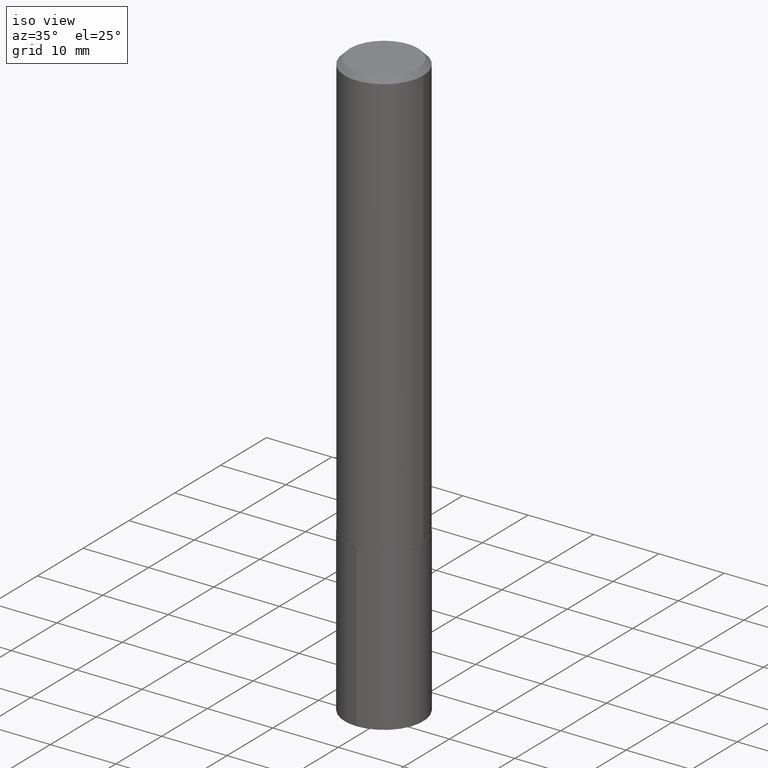
[diagram: clean part render]
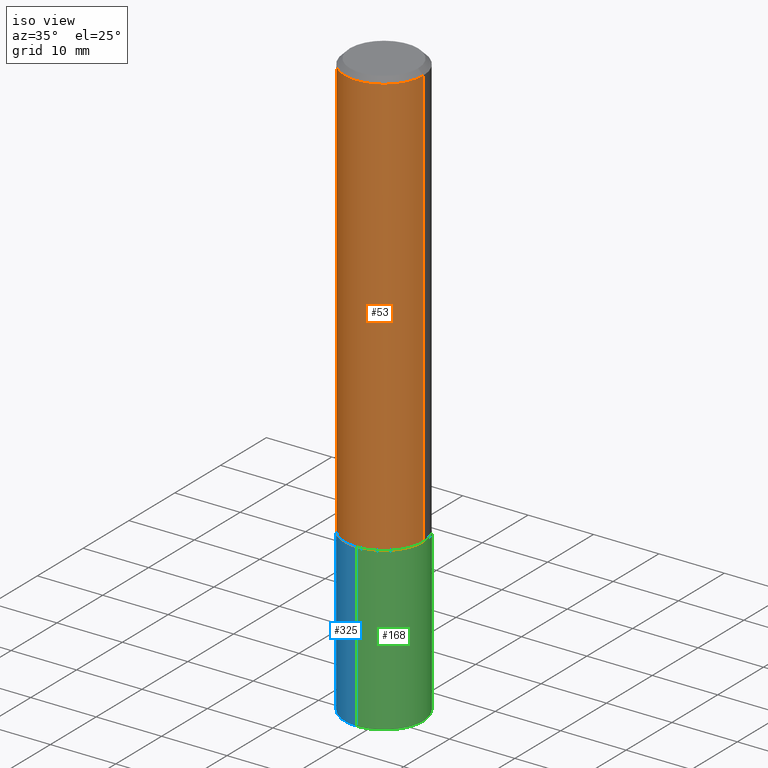
[diagram: same view with three faces highlighted in distinct colors, each labeled with its STEP entity id]
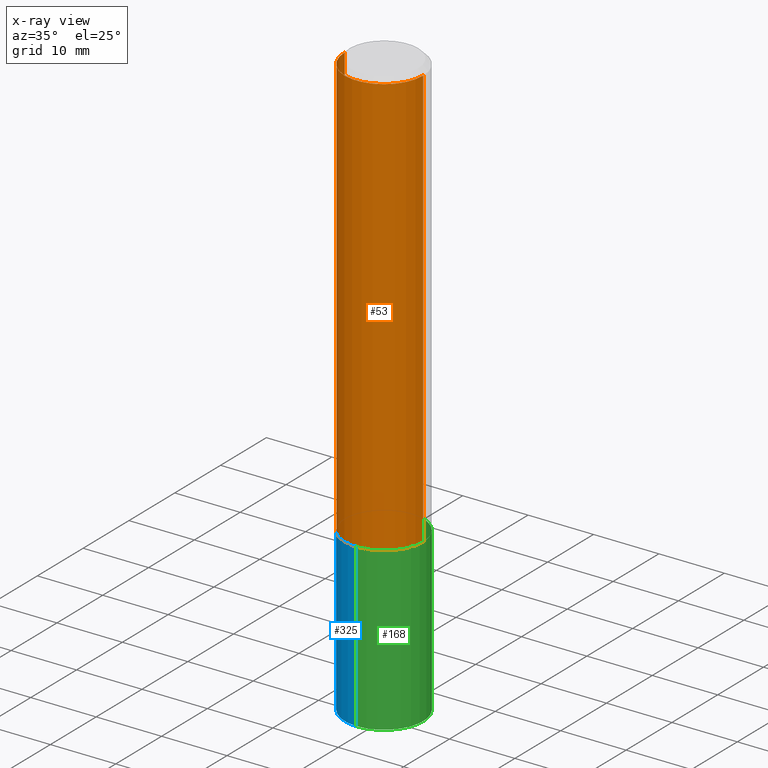
[diagram: x-ray of the same camera — body ghosted, the three highlighted faces saturated]
A machine part, iso view with three faces highlighted in distinct colors.
The next image is the same camera in x-ray (body ghosted, the three faces saturated) — at least one of them is partly hidden behind the body in this view.
Their STEP definitions:

[orange] entity #53 — the highlighted cylindrical surface (partial cylindrical patch) has radius 5.9995 mm, axis along (-0, 0, 1).
#2 = DIRECTION ( 'NONE',  ( 1.000000000000000000, -6.982962677686266711E-15, 4.876176775795936353E-29 ) ) ;
#6 = CARTESIAN_POINT ( 'NONE',  ( 0.2362000000000002709, -1.061131008501208223E-14, -2.566799999999999304 ) ) ;
#8 = EDGE_CURVE ( 'NONE', #286, #200, #307, .T. ) ;
#16 = CIRCLE ( 'NONE', #24, 0.2361999999999999933 ) ;
#20 = VERTEX_POINT ( 'NONE', #248 ) ;
#24 = AXIS2_PLACEMENT_3D ( 'NONE', #28, #333, #208 ) ;
#28 = CARTESIAN_POINT ( 'NONE',  ( 7.642090019328599159E-31, -1.091087918388489774E-16, -0.03125000000000019429 ) ) ;
#42 = EDGE_CURVE ( 'NONE', #286, #20, #326, .T. ) ;
#52 = CYLINDRICAL_SURFACE ( 'NONE', #181, 0.2362000000000001321 ) ;
#53 = ADVANCED_FACE ( 'NONE', ( #273 ), #52, .T. ) ;
#60 = ORIENTED_EDGE ( 'NONE', *, *, #120, .F. ) ;
#67 = CARTESIAN_POINT ( 'NONE',  ( -0.2362000000000001321, 1.678301941865357577E-15, -1.161852468318209457E-29 ) ) ;
#71 = ORIENTED_EDGE ( 'NONE', *, *, #322, .T. ) ;
#88 = DIRECTION ( 'NONE',  ( -2.445468806185136877E-29, 3.491481338843145188E-15, 1.000000000000000000 ) ) ;
#120 = EDGE_CURVE ( 'NONE', #20, #232, #16, .T. ) ;
#130 = CARTESIAN_POINT ( 'NONE',  ( -0.2362000000000002709, -7.283632358677226158E-15, -2.566799999999999304 ) ) ;
#131 = EDGE_LOOP ( 'NONE', ( #170, #137, #71, #60 ) ) ;
#137 = ORIENTED_EDGE ( 'NONE', *, *, #8, .T. ) ;
#144 = DIRECTION ( 'NONE',  ( 1.000000000000000000, -6.982962677686265133E-15, 0.000000000000000000 ) ) ;
#146 = VECTOR ( 'NONE', #299, 39.37007874015748143 ) ;
#155 = CARTESIAN_POINT ( 'NONE',  ( 0.000000000000000000, 0.000000000000000000, 0.000000000000000000 ) ) ;
#170 = ORIENTED_EDGE ( 'NONE', *, *, #42, .F. ) ;
#172 = CARTESIAN_POINT ( 'NONE',  ( 6.277029331716007931E-29, -8.961934300542585708E-15, -2.566799999999999304 ) ) ;
#181 = AXIS2_PLACEMENT_3D ( 'NONE', #155, #276, #2 ) ;
#200 = VERTEX_POINT ( 'NONE', #6 ) ;
#206 = DIRECTION ( 'NONE',  ( -2.445468806185136597E-29, 3.491481338843145583E-15, 1.000000000000000000 ) ) ;
#208 = DIRECTION ( 'NONE',  ( 1.000000000000000000, -6.982962677686266711E-15, 0.000000000000000000 ) ) ;
#226 = LINE ( 'NONE', #359, #243 ) ;
#232 = VERTEX_POINT ( 'NONE', #342 ) ;
#243 = VECTOR ( 'NONE', #88, 39.37007874015748143 ) ;
#248 = CARTESIAN_POINT ( 'NONE',  ( -0.2361999999999999933, -2.857219604325358644E-15, -0.03125000000000019429 ) ) ;
#273 = FACE_OUTER_BOUND ( 'NONE', #131, .T. ) ;
#276 = DIRECTION ( 'NONE',  ( -2.445468806185136597E-29, 3.491481338843145583E-15, 1.000000000000000000 ) ) ;
#286 = VERTEX_POINT ( 'NONE', #130 ) ;
#299 = DIRECTION ( 'NONE',  ( -2.445468806185136877E-29, 3.491481338843145188E-15, 1.000000000000000000 ) ) ;
#307 = CIRCLE ( 'NONE', #344, 0.2362000000000002709 ) ;
#322 = EDGE_CURVE ( 'NONE', #200, #232, #226, .T. ) ;
#326 = LINE ( 'NONE', #67, #146 ) ;
#333 = DIRECTION ( 'NONE',  ( -2.445468806185136597E-29, 3.491481338843145583E-15, 1.000000000000000000 ) ) ;
#342 = CARTESIAN_POINT ( 'NONE',  ( 0.2361999999999999933, -1.758484576308345231E-15, -0.03125000000000019429 ) ) ;
#344 = AXIS2_PLACEMENT_3D ( 'NONE', #172, #206, #144 ) ;
#359 = CARTESIAN_POINT ( 'NONE',  ( 0.2362000000000001321, -1.649375784469497117E-15, 1.151752954443000789E-29 ) ) ;

[blue] entity #325 — the highlighted cylindrical surface (partial cylindrical patch) has radius 5.9995 mm, axis along (-0, 0, 1).
#7 = CYLINDRICAL_SURFACE ( 'NONE', #44, 0.2361999999999999933 ) ;
#11 = CARTESIAN_POINT ( 'NONE',  ( 1.678301941865443563E-15, 0.2361999999999910838, -2.567300000000000804 ) ) ;
#32 = CIRCLE ( 'NONE', #238, 0.2361999999999999933 ) ;
#33 = VECTOR ( 'NONE', #55, 39.37007874015748143 ) ;
#34 = DIRECTION ( 'NONE',  ( -2.447102614353339399E-29, 3.489141632555692628E-15, 1.000000000000000000 ) ) ;
#35 = DIRECTION ( 'NONE',  ( -2.447102614353339399E-29, 3.489141632555693023E-15, 1.000000000000000000 ) ) ;
#38 = CARTESIAN_POINT ( 'NONE',  ( -1.649375784469409356E-15, -0.2362000000000123445, -3.543299999999999894 ) ) ;
#44 = AXIS2_PLACEMENT_3D ( 'NONE', #99, #219, #337 ) ;
#47 = DIRECTION ( 'NONE',  ( -2.447102614353339399E-29, 3.489141632555693023E-15, 1.000000000000000000 ) ) ;
#55 = DIRECTION ( 'NONE',  ( -2.447102614353339399E-29, 3.489141632555692628E-15, 1.000000000000000000 ) ) ;
#61 = CIRCLE ( 'NONE', #259, 0.2361999999999999933 ) ;
#79 = LINE ( 'NONE', #192, #33 ) ;
#81 = CARTESIAN_POINT ( 'NONE',  ( -1.649375784469433022E-15, -0.2362000000000089306, -2.567299999999998583 ) ) ;
#96 = VERTEX_POINT ( 'NONE', #124 ) ;
#99 = CARTESIAN_POINT ( 'NONE',  ( 6.278252066119100733E-29, -8.963680041212008000E-15, -2.567299999999999471 ) ) ;
#101 = DIRECTION ( 'NONE',  ( -6.982962677686265922E-15, -1.000000000000000000, 4.626330217890369336E-15 ) ) ;
#110 = ORIENTED_EDGE ( 'NONE', *, *, #300, .F. ) ;
#124 = CARTESIAN_POINT ( 'NONE',  ( 1.678301941865431139E-15, 0.2361999999999876421, -3.543300000000002115 ) ) ;
#139 = VECTOR ( 'NONE', #34, 39.37007874015748143 ) ;
#141 = VERTEX_POINT ( 'NONE', #214 ) ;
#185 = EDGE_CURVE ( 'NONE', #96, #349, #61, .T. ) ;
#192 = CARTESIAN_POINT ( 'NONE',  ( 1.678301941865419306E-15, 0.2361999999999910560, -2.567300000000000804 ) ) ;
#203 = FACE_OUTER_BOUND ( 'NONE', #317, .T. ) ;
#214 = CARTESIAN_POINT ( 'NONE',  ( -1.649375784469433022E-15, -0.2362000000000089306, -2.567299999999998583 ) ) ;
#216 = ORIENTED_EDGE ( 'NONE', *, *, #360, .F. ) ;
#219 = DIRECTION ( 'NONE',  ( -2.447102614353339399E-29, 3.489141632555693023E-15, 1.000000000000000000 ) ) ;
#220 = VERTEX_POINT ( 'NONE', #11 ) ;
#222 = CARTESIAN_POINT ( 'NONE',  ( 6.278252066119100733E-29, -8.963680041212008000E-15, -2.567299999999999471 ) ) ;
#230 = EDGE_CURVE ( 'NONE', #349, #141, #347, .T. ) ;
#238 = AXIS2_PLACEMENT_3D ( 'NONE', #222, #35, #282 ) ;
#259 = AXIS2_PLACEMENT_3D ( 'NONE', #331, #47, #101 ) ;
#282 = DIRECTION ( 'NONE',  ( -6.982962677686265922E-15, -1.000000000000000000, 4.626330217890369336E-15 ) ) ;
#300 = EDGE_CURVE ( 'NONE', #220, #141, #32, .T. ) ;
#317 = EDGE_LOOP ( 'NONE', ( #216, #319, #355, #110 ) ) ;
#319 = ORIENTED_EDGE ( 'NONE', *, *, #185, .T. ) ;
#325 = ADVANCED_FACE ( 'NONE', ( #203 ), #7, .T. ) ;
#331 = CARTESIAN_POINT ( 'NONE',  ( 8.666624217727962385E-29, -1.236908227458636611E-14, -3.543300000000000782 ) ) ;
#337 = DIRECTION ( 'NONE',  ( -6.982962677686265922E-15, -1.000000000000000000, 4.626330217890369336E-15 ) ) ;
#347 = LINE ( 'NONE', #81, #139 ) ;
#349 = VERTEX_POINT ( 'NONE', #38 ) ;
#355 = ORIENTED_EDGE ( 'NONE', *, *, #230, .T. ) ;
#360 = EDGE_CURVE ( 'NONE', #96, #220, #79, .T. ) ;

[green] entity #168 — the highlighted cylindrical surface (partial cylindrical patch) has radius 5.9995 mm, axis along (-0, 0, 1).
#5 = DIRECTION ( 'NONE',  ( -2.447102614353339399E-29, 3.489141632555693023E-15, 1.000000000000000000 ) ) ;
#11 = CARTESIAN_POINT ( 'NONE',  ( 1.678301941865443563E-15, 0.2361999999999910838, -2.567300000000000804 ) ) ;
#29 = FACE_OUTER_BOUND ( 'NONE', #262, .T. ) ;
#30 = DIRECTION ( 'NONE',  ( -6.982962677686265922E-15, -1.000000000000000000, 4.626330217890369336E-15 ) ) ;
#33 = VECTOR ( 'NONE', #55, 39.37007874015748143 ) ;
#34 = DIRECTION ( 'NONE',  ( -2.447102614353339399E-29, 3.489141632555692628E-15, 1.000000000000000000 ) ) ;
#38 = CARTESIAN_POINT ( 'NONE',  ( -1.649375784469409356E-15, -0.2362000000000123445, -3.543299999999999894 ) ) ;
#40 = ORIENTED_EDGE ( 'NONE', *, *, #230, .F. ) ;
#55 = DIRECTION ( 'NONE',  ( -2.447102614353339399E-29, 3.489141632555692628E-15, 1.000000000000000000 ) ) ;
#58 = EDGE_CURVE ( 'NONE', #349, #96, #152, .T. ) ;
#72 = ORIENTED_EDGE ( 'NONE', *, *, #58, .T. ) ;
#79 = LINE ( 'NONE', #192, #33 ) ;
#81 = CARTESIAN_POINT ( 'NONE',  ( -1.649375784469433022E-15, -0.2362000000000089306, -2.567299999999998583 ) ) ;
#96 = VERTEX_POINT ( 'NONE', #124 ) ;
#123 = CARTESIAN_POINT ( 'NONE',  ( 6.278252066119100733E-29, -8.963680041212008000E-15, -2.567299999999999471 ) ) ;
#124 = CARTESIAN_POINT ( 'NONE',  ( 1.678301941865431139E-15, 0.2361999999999876421, -3.543300000000002115 ) ) ;
#133 = EDGE_CURVE ( 'NONE', #141, #220, #159, .T. ) ;
#139 = VECTOR ( 'NONE', #34, 39.37007874015748143 ) ;
#141 = VERTEX_POINT ( 'NONE', #214 ) ;
#142 = AXIS2_PLACEMENT_3D ( 'NONE', #123, #5, #30 ) ;
#149 = CARTESIAN_POINT ( 'NONE',  ( 6.278252066119100733E-29, -8.963680041212008000E-15, -2.567299999999999471 ) ) ;
#152 = CIRCLE ( 'NONE', #323, 0.2361999999999999933 ) ;
#159 = CIRCLE ( 'NONE', #301, 0.2361999999999999933 ) ;
#168 = ADVANCED_FACE ( 'NONE', ( #29 ), #277, .T. ) ;
#184 = DIRECTION ( 'NONE',  ( -2.447102614353339399E-29, 3.489141632555693023E-15, 1.000000000000000000 ) ) ;
#192 = CARTESIAN_POINT ( 'NONE',  ( 1.678301941865419306E-15, 0.2361999999999910560, -2.567300000000000804 ) ) ;
#214 = CARTESIAN_POINT ( 'NONE',  ( -1.649375784469433022E-15, -0.2362000000000089306, -2.567299999999998583 ) ) ;
#220 = VERTEX_POINT ( 'NONE', #11 ) ;
#230 = EDGE_CURVE ( 'NONE', #349, #141, #347, .T. ) ;
#245 = DIRECTION ( 'NONE',  ( -2.447102614353339399E-29, 3.489141632555693023E-15, 1.000000000000000000 ) ) ;
#262 = EDGE_LOOP ( 'NONE', ( #72, #287, #351, #40 ) ) ;
#272 = DIRECTION ( 'NONE',  ( -6.982962677686265922E-15, -1.000000000000000000, 4.626330217890369336E-15 ) ) ;
#277 = CYLINDRICAL_SURFACE ( 'NONE', #142, 0.2361999999999999933 ) ;
#287 = ORIENTED_EDGE ( 'NONE', *, *, #360, .T. ) ;
#301 = AXIS2_PLACEMENT_3D ( 'NONE', #149, #245, #272 ) ;
#304 = DIRECTION ( 'NONE',  ( -6.982962677686265922E-15, -1.000000000000000000, 4.626330217890369336E-15 ) ) ;
#323 = AXIS2_PLACEMENT_3D ( 'NONE', #336, #184, #304 ) ;
#336 = CARTESIAN_POINT ( 'NONE',  ( 8.666624217727962385E-29, -1.236908227458636611E-14, -3.543300000000000782 ) ) ;
#347 = LINE ( 'NONE', #81, #139 ) ;
#349 = VERTEX_POINT ( 'NONE', #38 ) ;
#351 = ORIENTED_EDGE ( 'NONE', *, *, #133, .F. ) ;
#360 = EDGE_CURVE ( 'NONE', #96, #220, #79, .T. ) ;